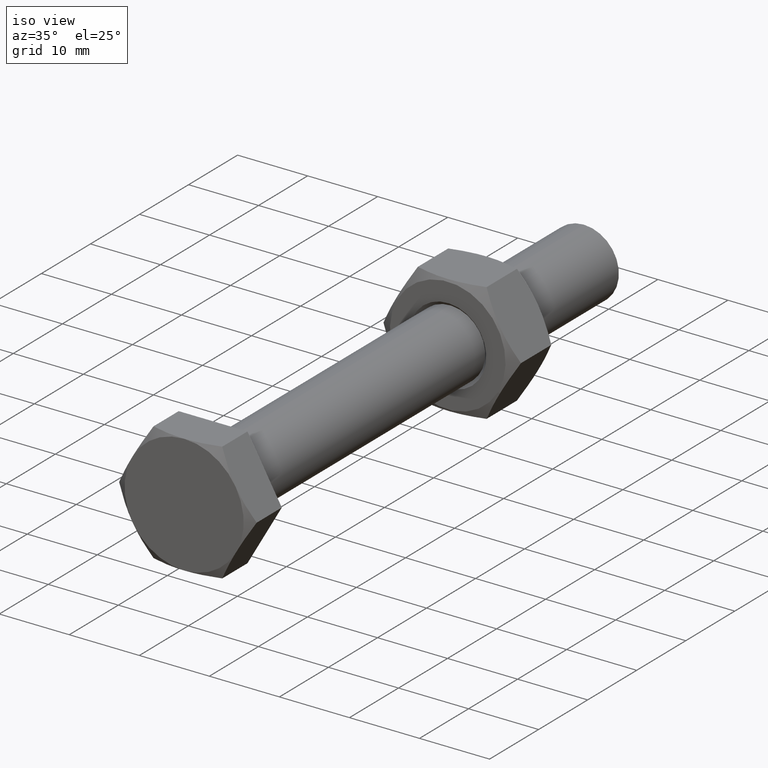
[diagram: clean part render]
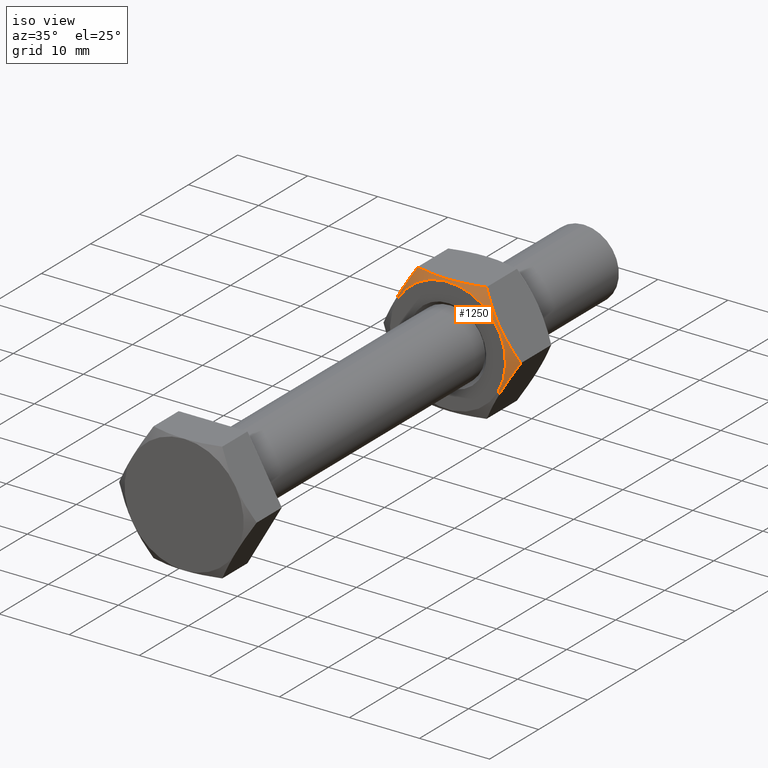
[diagram: same view with one face highlighted and labeled with its STEP entity id]
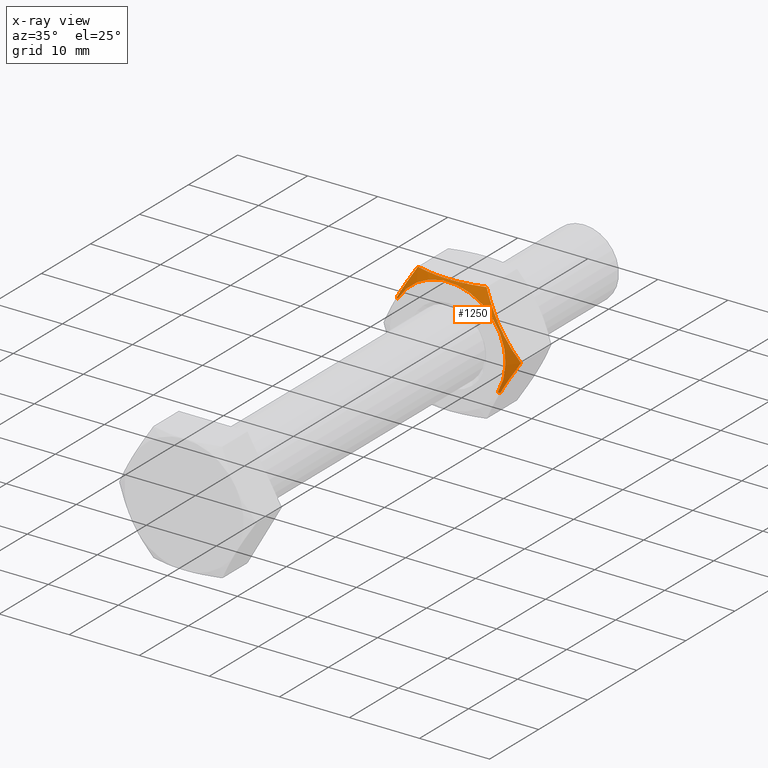
[diagram: x-ray of the same camera — body ghosted, the highlighted face saturated]
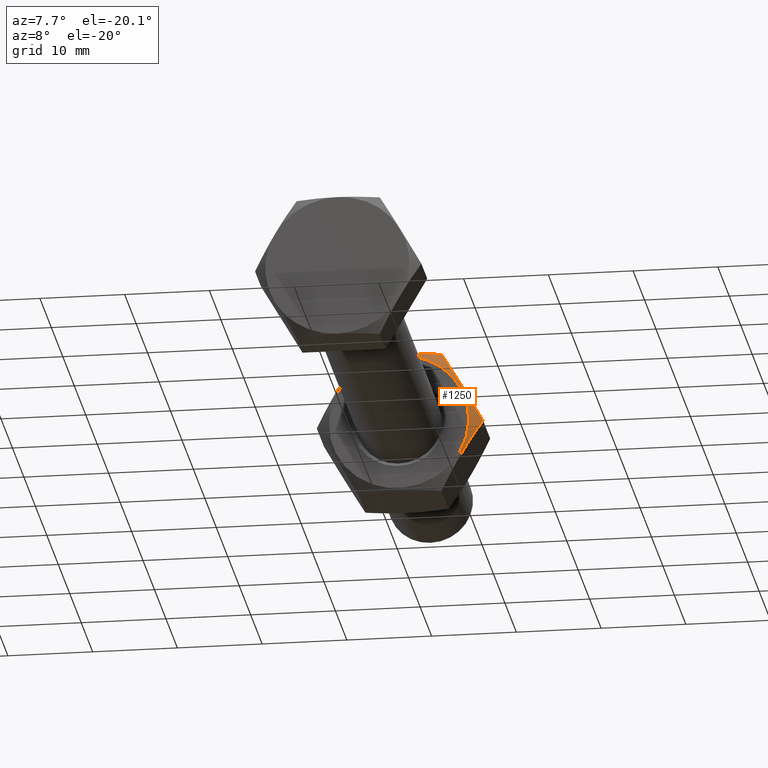
[diagram: same view with one face highlighted and labeled with its STEP entity id]
A machine part, iso view. The second image highlights one B-rep face of the part: STEP entity #1250.
The next image is the same camera in x-ray: the body ghosted, the highlighted face saturated — about 0% of this face is hidden behind the body in this view.
A second angle (auxiliary view) of the same face is appended — the face is thin or edge-on in the first view.
In plain terms, the highlighted conical surface has half-angle 60 deg.
Its self-contained STEP definition (entity closure, byte-faithful):
#25 = CARTESIAN_POINT ( 'NONE',  ( -5.694466222007605400, 0.2174612424314512900, 6.527252970056315100 ) ) ;
#48 = VERTEX_POINT ( 'NONE', #1065 ) ;
#119 = CARTESIAN_POINT ( 'NONE',  ( 4.603206338307830800, 0.1440748050265717200, 7.157292157666219600 ) ) ;
#120 = CARTESIAN_POINT ( 'NONE',  ( -8.500000000000000000, 0.1443375672973800900, 0.4154786823855768400 ) ) ;
#134 = CARTESIAN_POINT ( 'NONE',  ( -3.896793661692174100, 0.1440748050265428800, 7.565139706669235400 ) ) ;
#140 = B_SPLINE_CURVE_WITH_KNOTS ( 'NONE', 3,
 ( #350, #987, #688, #25, #787, #134, #895, #249, #996, #361, #1100, #467 ),
 .UNSPECIFIED., .F., .F.,
 ( 4, 2, 2, 2, 2, 4 ),
 ( 2.380731279447244300E-007, 0.002478378544578530100, 0.004956519016029115000, 0.006195589251754409500, 0.007434659487479703900, 0.009912799958930296200 ),
 .UNSPECIFIED. ) ;
#152 = CARTESIAN_POINT ( 'NONE',  ( 8.500000000000000000, 0.1621005354235862700, 0.8334481035892690200 ) ) ;
#169 = VERTEX_POINT ( 'NONE', #359 ) ;
#173 = CARTESIAN_POINT ( 'NONE',  ( -8.500000000000000000, 0.2323071893449744400, 1.668571392850525000 ) ) ;
#188 = LINE ( 'NONE', #1298, #485 ) ;
#214 = VECTOR ( 'NONE', #1081, 1000.000000000000100 ) ;
#228 = CARTESIAN_POINT ( 'NONE',  ( 4.966233766626699800, 0.1618200616500228300, 6.947698174203102500 ) ) ;
#238 = EDGE_LOOP ( 'NONE', ( #292, #758, #400, #969, #695, #1251, #1216 ) ) ;
#249 = CARTESIAN_POINT ( 'NONE',  ( -2.815659670509534700, 0.2310171451797890800, 8.189332707508587100 ) ) ;
#254 = CARTESIAN_POINT ( 'NONE',  ( -1.140422159448094100E-014, 3.266298882256046800, 0.0000000000000000000 ) ) ;
#292 = ORIENTED_EDGE ( 'NONE', *, *, #315, .F. ) ;
#300 = EDGE_CURVE ( 'NONE', #169, #583, #188, .T. ) ;
#315 = EDGE_CURVE ( 'NONE', #169, #1130, #1302, .T. ) ;
#334 = CARTESIAN_POINT ( 'NONE',  ( 8.499999999999998200, 0.9035269458523091900, 4.907477288111821600 ) ) ;
#340 = CARTESIAN_POINT ( 'NONE',  ( 7.104573684930408600, 0.4808067499787294100, 5.713127046751539600 ) ) ;
#343 = CARTESIAN_POINT ( 'NONE',  ( -3.357208887283125400E-015, 0.9035269458522775500, 9.814954576223637900 ) ) ;
#350 = CARTESIAN_POINT ( 'NONE',  ( -8.500000000000000000, 0.9035269458522468000, 4.907477288111818900 ) ) ;
#354 = CARTESIAN_POINT ( 'NONE',  ( 8.500000000000000000, 0.2842790021743309400, 2.081743556441038000 ) ) ;
#359 = CARTESIAN_POINT ( 'NONE',  ( 8.250000000000000000, 2.880472104545585300E-014, 1.106734394909505600E-015 ) ) ;
#361 = CARTESIAN_POINT ( 'NONE',  ( -1.395426315069596700, 0.4808067499786992100, 9.009304817583920800 ) ) ;
#389 = CARTESIAN_POINT ( 'NONE',  ( 8.499999999999998200, 0.4837096399545750500, 3.309936615830613200 ) ) ;
#400 = ORIENTED_EDGE ( 'NONE', *, *, #598, .F. ) ;
#407 = CARTESIAN_POINT ( 'NONE',  ( -8.500000000000000000, 0.1443375672973800600, -5.571330143123395900E-026 ) ) ;
#426 = CARTESIAN_POINT ( 'NONE',  ( 3.519224219570732200, 0.1448720511175231900, 7.783129525715825300 ) ) ;
#434 = DIRECTION ( 'NONE',  ( 1.000000000000000000, 3.491481338843133700E-015, 0.0000000000000000000 ) ) ;
#444 = CARTESIAN_POINT ( 'NONE',  ( 6.040986066074582400, 0.2823987512421015100, 6.327189644804699100 ) ) ;
#445 = DIRECTION ( 'NONE',  ( 3.491481338843133000E-015, -1.000000000000000000, -0.0000000000000000000 ) ) ;
#461 = CARTESIAN_POINT ( 'NONE',  ( 8.499999999999998200, 0.1443375672974394100, 0.4154786823855761700 ) ) ;
#467 = CARTESIAN_POINT ( 'NONE',  ( -3.357208887283125400E-015, 0.9035269458522775500, 9.814954576223637900 ) ) ;
#485 = VECTOR ( 'NONE', #1388, 1000.000000000000200 ) ;
#507 = FACE_OUTER_BOUND ( 'NONE', #238, .T. ) ;
#562 = CARTESIAN_POINT ( 'NONE',  ( -8.500000000000000000, 0.9035269458522468000, 4.907477288111818900 ) ) ;
#568 = CARTESIAN_POINT ( 'NONE',  ( 8.499999999999998200, 0.2323071893450344700, 1.668571392850521900 ) ) ;
#580 = DIRECTION ( 'NONE',  ( -1.000000000000000000, -3.492548760802557300E-015, 0.0000000000000000000 ) ) ;
#582 = B_SPLINE_CURVE_WITH_KNOTS ( 'NONE', 3,
 ( #1381, #1281, #1142, #675, #426, #119, #228, #1074, #444, #340, #652, #334 ),
 .UNSPECIFIED., .F., .F.,
 ( 4, 2, 2, 2, 2, 4 ),
 ( 2.380731279450458800E-007, 0.002478378544578533100, 0.004956519016029121100, 0.006195589251754417300, 0.007434659487479713400, 0.009912799958930303100 ),
 .UNSPECIFIED. ) ;
#583 = VERTEX_POINT ( 'NONE', #865 ) ;
#598 = EDGE_CURVE ( 'NONE', #48, #583, #872, .T. ) ;
#619 = VERTEX_POINT ( 'NONE', #343 ) ;
#648 = B_SPLINE_CURVE_WITH_KNOTS ( 'NONE', 3,
 ( #882, #120, #682, #173, #929, #825, #933, #562 ),
 .UNSPECIFIED., .F., .F.,
 ( 4, 2, 2, 4 ),
 ( 0.01406810767570513800, 0.01531104158480777600, 0.01655397549391041500, 0.01903984331211568800 ),
 .UNSPECIFIED. ) ;
#652 = CARTESIAN_POINT ( 'NONE',  ( 7.805190717491849600, 0.6719238516826979700, 5.308625614403354100 ) ) ;
#675 = CARTESIAN_POINT ( 'NONE',  ( 2.805533777992392800, 0.2174612424314806300, 8.195178894279145300 ) ) ;
#682 = CARTESIAN_POINT ( 'NONE',  ( -8.500000000000000000, 0.1621005354235262000, 0.8334481035892735700 ) ) ;
#685 = AXIS2_PLACEMENT_3D ( 'NONE', #254, #902, #580 ) ;
#688 = CARTESIAN_POINT ( 'NONE',  ( -7.107052012407962100, 0.4815668988387629700, 5.711696183715229600 ) ) ;
#695 = ORIENTED_EDGE ( 'NONE', *, *, #1233, .F. ) ;
#750 = CARTESIAN_POINT ( 'NONE',  ( -8.500000000000000000, 0.9035269458522468000, 4.907477288111818900 ) ) ;
#758 = ORIENTED_EDGE ( 'NONE', *, *, #300, .T. ) ;
#787 = CARTESIAN_POINT ( 'NONE',  ( -4.980775780429269200, 0.1448720511174947100, 6.939302338619631500 ) ) ;
#796 = LINE ( 'NONE', #979, #214 ) ;
#824 = EDGE_CURVE ( 'NONE', #973, #1085, #648, .T. ) ;
#825 = CARTESIAN_POINT ( 'NONE',  ( -8.500000000000001800, 0.4837096399545150500, 3.309936615830614000 ) ) ;
#848 = CARTESIAN_POINT ( 'NONE',  ( 8.499999999999998200, 0.6743864753333189700, 4.113711414093583800 ) ) ;
#861 = CARTESIAN_POINT ( 'NONE',  ( -8.250000000000000000, -2.880472104545585300E-014, 0.0000000000000000000 ) ) ;
#865 = CARTESIAN_POINT ( 'NONE',  ( 8.499999999999998200, 0.1443375672974395700, 1.040949779219516100E-015 ) ) ;
#872 = B_SPLINE_CURVE_WITH_KNOTS ( 'NONE', 3,
 ( #1049, #848, #389, #354, #568, #152, #461, #1203 ),
 .UNSPECIFIED., .F., .F.,
 ( 4, 2, 2, 4 ),
 ( 0.02353690018752178600, 0.02602298905565126500, 0.02726603348971600600, 0.02850907792378074400 ),
 .UNSPECIFIED. ) ;
#882 = CARTESIAN_POINT ( 'NONE',  ( -8.500000000000000000, 0.1443375672973800600, -5.571330143123395900E-026 ) ) ;
#895 = CARTESIAN_POINT ( 'NONE',  ( -3.533766233373301500, 0.1618200616499935500, 7.774733690132352500 ) ) ;
#902 = DIRECTION ( 'NONE',  ( -3.491481338843133000E-015, 1.000000000000000000, 0.0000000000000000000 ) ) ;
#929 = CARTESIAN_POINT ( 'NONE',  ( -8.500000000000000000, 0.2842790021742714900, 2.081743556441037100 ) ) ;
#933 = CARTESIAN_POINT ( 'NONE',  ( -8.500000000000001800, 0.6743864753332580200, 4.113711414093583800 ) ) ;
#949 = EDGE_CURVE ( 'NONE', #619, #48, #582, .T. ) ;
#969 = ORIENTED_EDGE ( 'NONE', *, *, #949, .F. ) ;
#973 = VERTEX_POINT ( 'NONE', #407 ) ;
#979 = CARTESIAN_POINT ( 'NONE',  ( -13.90739561677276700, 3.266298882255998400, 0.0000000000000000000 ) ) ;
#987 = CARTESIAN_POINT ( 'NONE',  ( -7.806055738952176500, 0.6722121921692070200, 5.308126194030376300 ) ) ;
#996 = CARTESIAN_POINT ( 'NONE',  ( -2.459013933925418400, 0.2823987512420719200, 8.395242219530757700 ) ) ;
#1002 = CONICAL_SURFACE ( 'NONE', #685, 13.90739561677275500, 1.047197551196586100 ) ;
#1049 = CARTESIAN_POINT ( 'NONE',  ( 8.499999999999998200, 0.9035269458523091900, 4.907477288111821600 ) ) ;
#1065 = CARTESIAN_POINT ( 'NONE',  ( 8.499999999999998200, 0.9035269458523091900, 4.907477288111821600 ) ) ;
#1074 = CARTESIAN_POINT ( 'NONE',  ( 5.684340329490466600, 0.2310171451798187800, 6.533099156826869700 ) ) ;
#1081 = DIRECTION ( 'NONE',  ( -0.8660254037844344900, 0.5000000000000069900, 0.0000000000000000000 ) ) ;
#1085 = VERTEX_POINT ( 'NONE', #750 ) ;
#1100 = CARTESIAN_POINT ( 'NONE',  ( -0.6948092825081562100, 0.6719238516826665500, 9.413806249932108000 ) ) ;
#1130 = VERTEX_POINT ( 'NONE', #861 ) ;
#1142 = CARTESIAN_POINT ( 'NONE',  ( 1.392947987592036500, 0.4815668988387928900, 9.010735680620223700 ) ) ;
#1176 = EDGE_CURVE ( 'NONE', #1130, #973, #796, .T. ) ;
#1203 = CARTESIAN_POINT ( 'NONE',  ( 8.499999999999998200, 0.1443375672974395700, 1.040949779219516100E-015 ) ) ;
#1216 = ORIENTED_EDGE ( 'NONE', *, *, #1176, .F. ) ;
#1231 = AXIS2_PLACEMENT_3D ( 'NONE', #1255, #445, #434 ) ;
#1233 = EDGE_CURVE ( 'NONE', #1085, #619, #140, .T. ) ;
#1250 = ADVANCED_FACE ( 'NONE', ( #507 ), #1002, .T. ) ;
#1251 = ORIENTED_EDGE ( 'NONE', *, *, #824, .F. ) ;
#1255 = CARTESIAN_POINT ( 'NONE',  ( 3.944304526105059000E-028, 0.0000000000000000000, 0.0000000000000000000 ) ) ;
#1281 = CARTESIAN_POINT ( 'NONE',  ( 0.6939442610478234700, 0.6722121921692367800, 9.414305670305077800 ) ) ;
#1298 = CARTESIAN_POINT ( 'NONE',  ( 13.90739561677274400, 3.266298882256095200, 1.703164752655668500E-015 ) ) ;
#1302 = CIRCLE ( 'NONE', #1231, 8.250000000000000000 ) ;
#1381 = CARTESIAN_POINT ( 'NONE',  ( -3.357208887283125400E-015, 0.9035269458522775500, 9.814954576223637900 ) ) ;
#1388 = DIRECTION ( 'NONE',  ( 0.8660254037844311600, 0.5000000000000131000, 1.060575238724899800E-016 ) ) ;